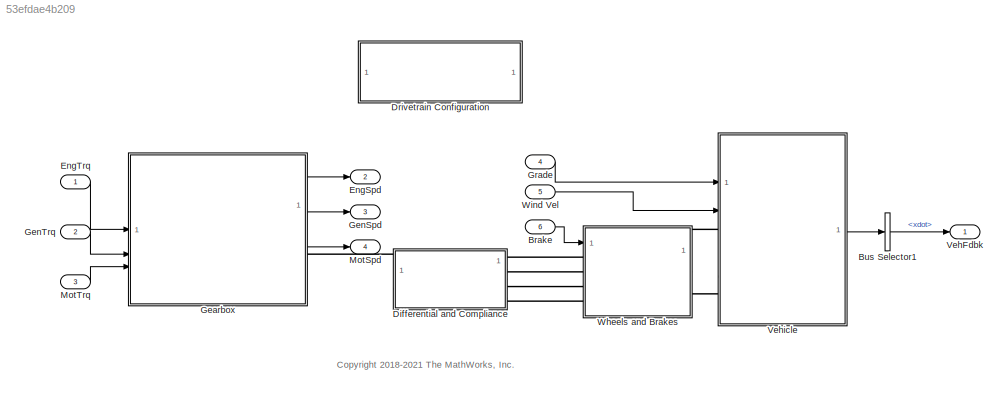
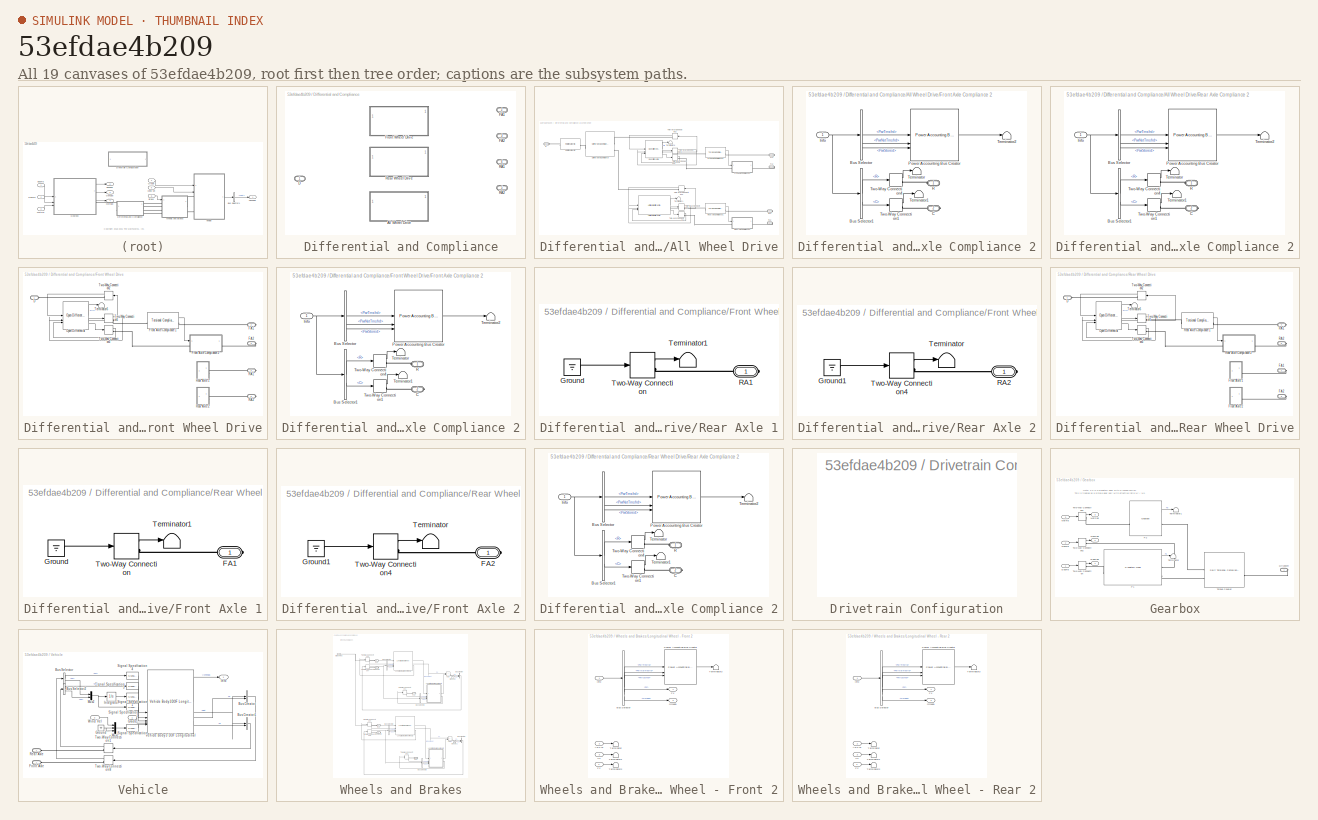
[diagram: thumbnail index - all 19 canvases of the model, root first then tree order]
MODEL slx_53efdae4b209
KIND model
CONFIG AbsTol = auto
CONFIG EnableMultiTasking = on
CONFIG MaxStep = auto
CONFIG MinStep = auto
CONFIG RelTol = 1e-3
CONFIG SampleTimeConstraint = Unconstrained
CONFIG SolverName = VariableStepAuto
CONFIG StartTime = 0.0
CONFIG StopTime = inf
WORKSPACE source: mxarray member
WORKSPACE DiffRatio: Simulink.Parameter (value not decoded)
WORKSPACE Jc1: Simulink.Parameter (value not decoded)
WORKSPACE Jp1: Simulink.Parameter (value not decoded)
WORKSPACE Jr1: Simulink.Parameter (value not decoded)
WORKSPACE Js1: Simulink.Parameter (value not decoded)
WORKSPACE NF: Simulink.Parameter (value not decoded)
WORKSPACE NR: Simulink.Parameter (value not decoded)
WORKSPACE Np1: Simulink.Parameter (value not decoded)
WORKSPACE Np2: Simulink.Parameter (value not decoded)
WORKSPACE Nr1: Simulink.Parameter (value not decoded)
WORKSPACE Nr2: Simulink.Parameter (value not decoded)
WORKSPACE Ns1: Simulink.Parameter (value not decoded)
WORKSPACE Ns2: Simulink.Parameter (value not decoded)
WORKSPACE RWheel: Simulink.Parameter (value not decoded)
WORKSPACE b_axle: Simulink.Parameter (value not decoded)
WORKSPACE b_driveshaft: Simulink.Parameter (value not decoded)
WORKSPACE bc1: Simulink.Parameter (value not decoded)
WORKSPACE bp1: Simulink.Parameter (value not decoded)
WORKSPACE br1: Simulink.Parameter (value not decoded)
WORKSPACE bs1: Simulink.Parameter (value not decoded)
WORKSPACE k_axle: Simulink.Parameter (value not decoded)
WORKSPACE k_driveshaft: Simulink.Parameter (value not decoded)
WORKSPACE wc_shaft: Simulink.Parameter (value not decoded)
BLOCK [Inport] Brake
  Port = 6
BLOCK [BusSelector] Bus Selector1
  OutputSignals = BdyFrm.Cg.Vel.xdot
BLOCK [SubSystem] Differential and Compliance
  LabelModeActiveChoice = 0
  Variant = on
  VariantControlMode = label
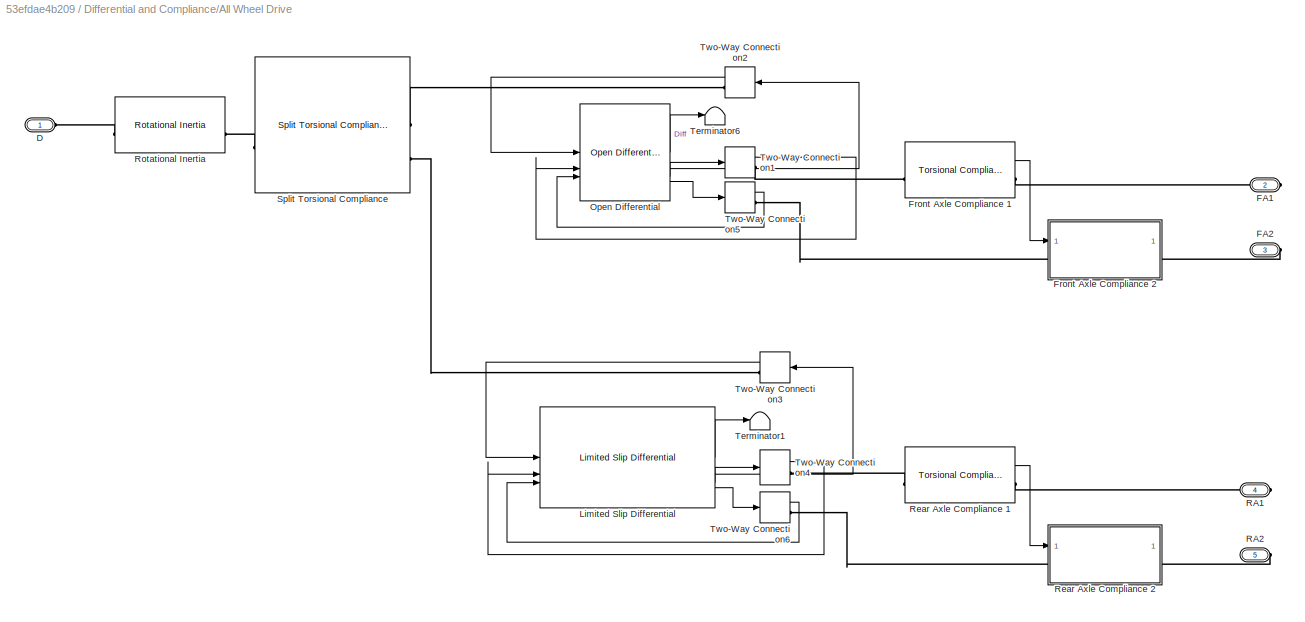
BLOCK [SubSystem] Differential and Compliance/All Wheel Drive
  VariantControl = 2
BLOCK [PMIOPort] Differential and Compliance/All Wheel Drive/D
  Side = Left
BLOCK [PMIOPort] Differential and Compliance/All Wheel Drive/FA1
  Port = 2
  Side = Right
BLOCK [PMIOPort] Differential and Compliance/All Wheel Drive/FA2
  Port = 3
  Side = Right
BLOCK [Reference] Differential and Compliance/All Wheel Drive/Front Axle Compliance 1  REF=autolibsharedcoupling/Torsional Compliance
  LibrarySourceBlock = autolibcoupling/Torsional Compliance
  SourceBlock = autolibsharedcoupling/Torsional Compliance
  SourceType = Torsional Compliance
BLOCK [SubSystem] Differential and Compliance/All Wheel Drive/Front Axle Compliance 2
BLOCK [BusSelector] Differential and Compliance/All Wheel Drive/Front Axle Compliance 2/Bus Selector
  OutputSignals = PwrInfo.PwrTrnsfrd,PwrInfo.PwrNotTrnsfrd,PwrInfo.PwrStored
BLOCK [BusSelector] Differential and Compliance/All Wheel Drive/Front Axle Compliance 2/Bus Selector1
  OutputSignals = Trq.R,Trq.C
BLOCK [PMIOPort] Differential and Compliance/All Wheel Drive/Front Axle Compliance 2/C
  Port = 2
  Side = Right
BLOCK [Inport] Differential and Compliance/All Wheel Drive/Front Axle Compliance 2/Info
BLOCK [Reference] Differential and Compliance/All Wheel Drive/Front Axle Compliance 2/Power Accounting Bus Creator  REF=autolibpowerinfoutils/Power Accounting Bus Creator
  SourceBlock = autolibpowerinfoutils/Power Accounting Bus Creator
  SourceType = Power Accounting Bus Creator
BLOCK [PMIOPort] Differential and Compliance/All Wheel Drive/Front Axle Compliance 2/R
  Side = Left
BLOCK [Terminator] Differential and Compliance/All Wheel Drive/Front Axle Compliance 2/Terminator
BLOCK [Terminator] Differential and Compliance/All Wheel Drive/Front Axle Compliance 2/Terminator1
BLOCK [Terminator] Differential and Compliance/All Wheel Drive/Front Axle Compliance 2/Terminator2
BLOCK [TwoWayConnection] Differential and Compliance/All Wheel Drive/Front Axle Compliance 2/Two-Way Connection1
BLOCK [TwoWayConnection] Differential and Compliance/All Wheel Drive/Front Axle Compliance 2/Two-Way Connection4
BLOCK [Reference] Differential and Compliance/All Wheel Drive/Limited Slip Differential  REF=autolibshareddiff/Limited Slip Differential
  LibrarySourceBlock = autolibdiff/Limited Slip Differential
  SourceBlock = autolibshareddiff/Limited Slip Differential
  SourceType = Limited Slip Differential
BLOCK [Reference] Differential and Compliance/All Wheel Drive/Open Differential  REF=autolibshareddiff/Open Differential
  LibrarySourceBlock = autolibdiff/Open Differential
  SourceBlock = autolibshareddiff/Open Differential
  SourceType = Open Differential
BLOCK [PMIOPort] Differential and Compliance/All Wheel Drive/RA1
  Port = 4
  Side = Right
BLOCK [PMIOPort] Differential and Compliance/All Wheel Drive/RA2
  Port = 5
  Side = Right
BLOCK [Reference] Differential and Compliance/All Wheel Drive/Rear Axle Compliance 1  REF=autolibsharedcoupling/Torsional Compliance
  LibrarySourceBlock = autolibcoupling/Torsional Compliance
  SourceBlock = autolibsharedcoupling/Torsional Compliance
  SourceType = Torsional Compliance
BLOCK [SubSystem] Differential and Compliance/All Wheel Drive/Rear Axle Compliance 2
BLOCK [BusSelector] Differential and Compliance/All Wheel Drive/Rear Axle Compliance 2/Bus Selector
  OutputSignals = PwrInfo.PwrTrnsfrd,PwrInfo.PwrNotTrnsfrd,PwrInfo.PwrStored
BLOCK [BusSelector] Differential and Compliance/All Wheel Drive/Rear Axle Compliance 2/Bus Selector1
  OutputSignals = Trq.R,Trq.C
BLOCK [PMIOPort] Differential and Compliance/All Wheel Drive/Rear Axle Compliance 2/C
  Port = 2
  Side = Right
BLOCK [Inport] Differential and Compliance/All Wheel Drive/Rear Axle Compliance 2/Info
BLOCK [Reference] Differential and Compliance/All Wheel Drive/Rear Axle Compliance 2/Power Accounting Bus Creator  REF=autolibpowerinfoutils/Power Accounting Bus Creator
  SourceBlock = autolibpowerinfoutils/Power Accounting Bus Creator
  SourceType = Power Accounting Bus Creator
BLOCK [PMIOPort] Differential and Compliance/All Wheel Drive/Rear Axle Compliance 2/R
  Side = Left
BLOCK [Terminator] Differential and Compliance/All Wheel Drive/Rear Axle Compliance 2/Terminator
BLOCK [Terminator] Differential and Compliance/All Wheel Drive/Rear Axle Compliance 2/Terminator1
BLOCK [Terminator] Differential and Compliance/All Wheel Drive/Rear Axle Compliance 2/Terminator2
BLOCK [TwoWayConnection] Differential and Compliance/All Wheel Drive/Rear Axle Compliance 2/Two-Way Connection1
BLOCK [TwoWayConnection] Differential and Compliance/All Wheel Drive/Rear Axle Compliance 2/Two-Way Connection4
BLOCK [Reference] Differential and Compliance/All Wheel Drive/Rotational Inertia  REF=autolibsharedcoupling/Rotational Inertia
  LibrarySourceBlock = autolibcoupling/Rotational Inertia
  SourceBlock = autolibsharedcoupling/Rotational Inertia
  SourceType = Rotational Inertia
BLOCK [Reference] Differential and Compliance/All Wheel Drive/Split Torsional Compliance  REF=autolibsharedcoupling/Split Torsional Compliance
  LibrarySourceBlock = autolibcoupling/Split Torsional Compliance
  SourceBlock = autolibsharedcoupling/Split Torsional Compliance
  SourceType = Split Torsional Compliance
BLOCK [Terminator] Differential and Compliance/All Wheel Drive/Terminator1
BLOCK [Terminator] Differential and Compliance/All Wheel Drive/Terminator6
BLOCK [TwoWayConnection] Differential and Compliance/All Wheel Drive/Two-Way Connection1
BLOCK [TwoWayConnection] Differential and Compliance/All Wheel Drive/Two-Way Connection2
BLOCK [TwoWayConnection] Differential and Compliance/All Wheel Drive/Two-Way Connection3
BLOCK [TwoWayConnection] Differential and Compliance/All Wheel Drive/Two-Way Connection4
  NameLocation = top
BLOCK [TwoWayConnection] Differential and Compliance/All Wheel Drive/Two-Way Connection5
BLOCK [TwoWayConnection] Differential and Compliance/All Wheel Drive/Two-Way Connection6
BLOCK [PMIOPort] Differential and Compliance/D
  Side = Left
BLOCK [PMIOPort] Differential and Compliance/FA1
  Port = 2
  Side = Right
BLOCK [PMIOPort] Differential and Compliance/FA2
  Port = 3
  Side = Right
BLOCK [SubSystem] Differential and Compliance/Front Wheel Drive
  VariantControl = 0
BLOCK [PMIOPort] Differential and Compliance/Front Wheel Drive/D
  Side = Left
BLOCK [PMIOPort] Differential and Compliance/Front Wheel Drive/FA1
  Port = 2
  Side = Right
BLOCK [PMIOPort] Differential and Compliance/Front Wheel Drive/FA2
  Port = 3
  Side = Right
BLOCK [Reference] Differential and Compliance/Front Wheel Drive/Front Axle Compliance 1  REF=autolibsharedcoupling/Torsional Compliance
  LibrarySourceBlock = autolibcoupling/Torsional Compliance
  SourceBlock = autolibsharedcoupling/Torsional Compliance
  SourceType = Torsional Compliance
BLOCK [SubSystem] Differential and Compliance/Front Wheel Drive/Front Axle Compliance 2
BLOCK [BusSelector] Differential and Compliance/Front Wheel Drive/Front Axle Compliance 2/Bus Selector
  OutputSignals = PwrInfo.PwrTrnsfrd,PwrInfo.PwrNotTrnsfrd,PwrInfo.PwrStored
BLOCK [BusSelector] Differential and Compliance/Front Wheel Drive/Front Axle Compliance 2/Bus Selector1
  OutputSignals = Trq.R,Trq.C
BLOCK [PMIOPort] Differential and Compliance/Front Wheel Drive/Front Axle Compliance 2/C
  Port = 2
  Side = Right
BLOCK [Inport] Differential and Compliance/Front Wheel Drive/Front Axle Compliance 2/Info
BLOCK [Reference] Differential and Compliance/Front Wheel Drive/Front Axle Compliance 2/Power Accounting Bus Creator  REF=autolibpowerinfoutils/Power Accounting Bus Creator
  SourceBlock = autolibpowerinfoutils/Power Accounting Bus Creator
  SourceType = Power Accounting Bus Creator
BLOCK [PMIOPort] Differential and Compliance/Front Wheel Drive/Front Axle Compliance 2/R
  Side = Left
BLOCK [Terminator] Differential and Compliance/Front Wheel Drive/Front Axle Compliance 2/Terminator
BLOCK [Terminator] Differential and Compliance/Front Wheel Drive/Front Axle Compliance 2/Terminator1
BLOCK [Terminator] Differential and Compliance/Front Wheel Drive/Front Axle Compliance 2/Terminator2
BLOCK [TwoWayConnection] Differential and Compliance/Front Wheel Drive/Front Axle Compliance 2/Two-Way Connection1
BLOCK [TwoWayConnection] Differential and Compliance/Front Wheel Drive/Front Axle Compliance 2/Two-Way Connection4
BLOCK [Reference] Differential and Compliance/Front Wheel Drive/Open Differential  REF=autolibshareddiff/Open Differential
  LibrarySourceBlock = autolibdiff/Open Differential
  SourceBlock = autolibshareddiff/Open Differential
  SourceType = Open Differential
BLOCK [PMIOPort] Differential and Compliance/Front Wheel Drive/RA1
  Port = 4
  Side = Right
BLOCK [PMIOPort] Differential and Compliance/Front Wheel Drive/RA2
  Port = 5
  Side = Right
BLOCK [SubSystem] Differential and Compliance/Front Wheel Drive/Rear Axle 1
BLOCK [Ground] Differential and Compliance/Front Wheel Drive/Rear Axle 1/Ground
BLOCK [PMIOPort] Differential and Compliance/Front Wheel Drive/Rear Axle 1/RA1
  Side = Right
BLOCK [Terminator] Differential and Compliance/Front Wheel Drive/Rear Axle 1/Terminator1
BLOCK [TwoWayConnection] Differential and Compliance/Front Wheel Drive/Rear Axle 1/Two-Way Connection
BLOCK [SubSystem] Differential and Compliance/Front Wheel Drive/Rear Axle 2
BLOCK [Ground] Differential and Compliance/Front Wheel Drive/Rear Axle 2/Ground1
BLOCK [PMIOPort] Differential and Compliance/Front Wheel Drive/Rear Axle 2/RA2
  Side = Right
BLOCK [Terminator] Differential and Compliance/Front Wheel Drive/Rear Axle 2/Terminator
BLOCK [TwoWayConnection] Differential and Compliance/Front Wheel Drive/Rear Axle 2/Two-Way Connection4
BLOCK [Terminator] Differential and Compliance/Front Wheel Drive/Terminator6
BLOCK [TwoWayConnection] Differential and Compliance/Front Wheel Drive/Two-Way Connection1
BLOCK [TwoWayConnection] Differential and Compliance/Front Wheel Drive/Two-Way Connection2
BLOCK [TwoWayConnection] Differential and Compliance/Front Wheel Drive/Two-Way Connection3
BLOCK [PMIOPort] Differential and Compliance/RA1
  Port = 4
  Side = Right
BLOCK [PMIOPort] Differential and Compliance/RA2
  Port = 5
  Side = Right
BLOCK [SubSystem] Differential and Compliance/Rear Wheel Drive
  VariantControl = 1
BLOCK [PMIOPort] Differential and Compliance/Rear Wheel Drive/D
  Side = Left
BLOCK [PMIOPort] Differential and Compliance/Rear Wheel Drive/FA1
  Port = 2
  Side = Right
BLOCK [PMIOPort] Differential and Compliance/Rear Wheel Drive/FA2
  Port = 3
  Side = Right
BLOCK [SubSystem] Differential and Compliance/Rear Wheel Drive/Front Axle 1
BLOCK [PMIOPort] Differential and Compliance/Rear Wheel Drive/Front Axle 1/FA1
  Side = Right
BLOCK [Ground] Differential and Compliance/Rear Wheel Drive/Front Axle 1/Ground
BLOCK [Terminator] Differential and Compliance/Rear Wheel Drive/Front Axle 1/Terminator1
BLOCK [TwoWayConnection] Differential and Compliance/Rear Wheel Drive/Front Axle 1/Two-Way Connection
BLOCK [SubSystem] Differential and Compliance/Rear Wheel Drive/Front Axle 2
BLOCK [PMIOPort] Differential and Compliance/Rear Wheel Drive/Front Axle 2/FA2
  Side = Right
BLOCK [Ground] Differential and Compliance/Rear Wheel Drive/Front Axle 2/Ground1
BLOCK [Terminator] Differential and Compliance/Rear Wheel Drive/Front Axle 2/Terminator
BLOCK [TwoWayConnection] Differential and Compliance/Rear Wheel Drive/Front Axle 2/Two-Way Connection4
BLOCK [Reference] Differential and Compliance/Rear Wheel Drive/Open Differential  REF=autolibshareddiff/Open Differential
  LibrarySourceBlock = autolibdiff/Open Differential
  SourceBlock = autolibshareddiff/Open Differential
  SourceType = Open Differential
BLOCK [PMIOPort] Differential and Compliance/Rear Wheel Drive/RA1
  Port = 4
  Side = Right
BLOCK [PMIOPort] Differential and Compliance/Rear Wheel Drive/RA2
  Port = 5
  Side = Right
BLOCK [Reference] Differential and Compliance/Rear Wheel Drive/Rear Axle Compliance 1  REF=autolibsharedcoupling/Torsional Compliance
  LibrarySourceBlock = autolibcoupling/Torsional Compliance
  SourceBlock = autolibsharedcoupling/Torsional Compliance
  SourceType = Torsional Compliance
BLOCK [SubSystem] Differential and Compliance/Rear Wheel Drive/Rear Axle Compliance 2
BLOCK [BusSelector] Differential and Compliance/Rear Wheel Drive/Rear Axle Compliance 2/Bus Selector
  OutputSignals = PwrInfo.PwrTrnsfrd,PwrInfo.PwrNotTrnsfrd,PwrInfo.PwrStored
BLOCK [BusSelector] Differential and Compliance/Rear Wheel Drive/Rear Axle Compliance 2/Bus Selector1
  OutputSignals = Trq.R,Trq.C
BLOCK [PMIOPort] Differential and Compliance/Rear Wheel Drive/Rear Axle Compliance 2/C
  Port = 2
  Side = Right
BLOCK [Inport] Differential and Compliance/Rear Wheel Drive/Rear Axle Compliance 2/Info
BLOCK [Reference] Differential and Compliance/Rear Wheel Drive/Rear Axle Compliance 2/Power Accounting Bus Creator  REF=autolibpowerinfoutils/Power Accounting Bus Creator
  SourceBlock = autolibpowerinfoutils/Power Accounting Bus Creator
  SourceType = Power Accounting Bus Creator
BLOCK [PMIOPort] Differential and Compliance/Rear Wheel Drive/Rear Axle Compliance 2/R
  Side = Left
BLOCK [Terminator] Differential and Compliance/Rear Wheel Drive/Rear Axle Compliance 2/Terminator
BLOCK [Terminator] Differential and Compliance/Rear Wheel Drive/Rear Axle Compliance 2/Terminator1
BLOCK [Terminator] Differential and Compliance/Rear Wheel Drive/Rear Axle Compliance 2/Terminator2
BLOCK [TwoWayConnection] Differential and Compliance/Rear Wheel Drive/Rear Axle Compliance 2/Two-Way Connection1
BLOCK [TwoWayConnection] Differential and Compliance/Rear Wheel Drive/Rear Axle Compliance 2/Two-Way Connection4
BLOCK [Terminator] Differential and Compliance/Rear Wheel Drive/Terminator6
BLOCK [TwoWayConnection] Differential and Compliance/Rear Wheel Drive/Two-Way Connection1
BLOCK [TwoWayConnection] Differential and Compliance/Rear Wheel Drive/Two-Way Connection2
BLOCK [TwoWayConnection] Differential and Compliance/Rear Wheel Drive/Two-Way Connection3
BLOCK [SubSystem] Drivetrain Configuration
  AttributesFormatString = Active Mode: %<drivetrainMode>
BLOCK [Outport] EngSpd
  BusOutputAsStruct = on
  Port = 2
  SignalType = real
  VarSizeSig = No
  VectorParamsAs1DForOutWhenUnconnected = off
BLOCK [Inport] EngTrq
BLOCK [SubSystem] Gearbox
BLOCK [PMIOPort] Gearbox/Driveshft
  Side = Right
BLOCK [Outport] Gearbox/EngSpd
  NameLocation = top
  VectorParamsAs1DForOutWhenUnconnected = off
BLOCK [Inport] Gearbox/EngTrq
BLOCK [Outport] Gearbox/GenSpd
  NameLocation = top
  Port = 2
  VectorParamsAs1DForOutWhenUnconnected = off
BLOCK [Inport] Gearbox/GenTrq
  Port = 2
BLOCK [Outport] Gearbox/MotSpd
  NameLocation = top
  Port = 3
  VectorParamsAs1DForOutWhenUnconnected = off
BLOCK [Inport] Gearbox/MotTrq
  Port = 3
BLOCK [Reference] Gearbox/P1  REF=autolibcoupling/Planetary Gear
  SourceBlock = autolibcoupling/Planetary Gear
  SourceType = Planetary Gear: Torque Input - Reduced Order
BLOCK [Reference] Gearbox/P2  REF=autolibcoupling/Gearbox
  SourceBlock = autolibcoupling/Gearbox
  SourceType = Gearbox
BLOCK [Terminator] Gearbox/Terminator
BLOCK [Terminator] Gearbox/Terminator1
BLOCK [Reference] Gearbox/Torque Coupler  REF=autolibsharedcoupling/Split Torsional Compliance
  LibrarySourceBlock = autolibcoupling/Split Torsional Compliance
  SourceBlock = autolibsharedcoupling/Split Torsional Compliance
  SourceType = Split Torsional Compliance
BLOCK [TwoWayConnection] Gearbox/Two-Way Connection
BLOCK [TwoWayConnection] Gearbox/Two-Way Connection1
BLOCK [TwoWayConnection] Gearbox/Two-Way Connection2
BLOCK [Outport] GenSpd
  BusOutputAsStruct = on
  Port = 3
  SignalType = real
  VarSizeSig = No
  VectorParamsAs1DForOutWhenUnconnected = off
BLOCK [Inport] GenTrq
  Port = 2
BLOCK [Inport] Grade
  Port = 4
BLOCK [Outport] MotSpd
  BusOutputAsStruct = on
  Port = 4
  SignalType = real
  VarSizeSig = No
  VectorParamsAs1DForOutWhenUnconnected = off
BLOCK [Inport] MotTrq
  Port = 3
BLOCK [Outport] VehFdbk
  VectorParamsAs1DForOutWhenUnconnected = off
BLOCK [SubSystem] Vehicle
BLOCK [BusCreator] Vehicle/Bus Creator
  DisplayOption = bar
  InheritFromInputs = on
  Inputs = 2
BLOCK [BusCreator] Vehicle/Bus Creator1
  DisplayOption = bar
  InheritFromInputs = on
  Inputs = 2
BLOCK [BusSelector] Vehicle/Bus Selector
  OutputSignals = Fx,Fz
BLOCK [BusSelector] Vehicle/Bus Selector2
  OutputSignals = Fx,Fz
BLOCK [PMIOPort] Vehicle/Front Axle
  Side = Left
BLOCK [Inport] Vehicle/Grade
  Unit = deg
BLOCK [Ground] Vehicle/Ground
BLOCK [Outport] Vehicle/Info
  VectorParamsAs1DForOutWhenUnconnected = off
BLOCK [Integrator] Vehicle/Integrator
BLOCK [Mux] Vehicle/Mux1
  DisplayOption = bar
  Inputs = 3
BLOCK [Mux] Vehicle/Mux2
  DisplayOption = bar
  Inputs = 2
BLOCK [PMIOPort] Vehicle/Rear Axle
  Port = 2
  Side = Left
BLOCK [SignalSpecification] Vehicle/Signal Specification
  Unit = m/s
BLOCK [SignalSpecification] Vehicle/Signal Specification1
  Unit = m
BLOCK [SignalSpecification] Vehicle/Signal Specification2
  Unit = m/s
BLOCK [SignalSpecification] Vehicle/Signal Specification3
  Unit = N
BLOCK [SignalSpecification] Vehicle/Signal Specification4
  Unit = N
BLOCK [TwoWayConnection] Vehicle/Two-Way Connection1
BLOCK [TwoWayConnection] Vehicle/Two-Way Connection8
BLOCK [Reference] Vehicle/Vehicle Body 3 DOF Longitudinal  REF=autolibshared/Vehicle Body 3DOF Longitudinal
  LibrarySourceBlock = autolibvehdynlong/Vehicle Body 3DOF Longitudinal
  SourceBlock = autolibshared/Vehicle Body 3DOF Longitudinal
  SourceType = Vehicle Body 3DOF Longitudinal
BLOCK [Inport] Vehicle/Wind Vel
  Port = 2
  Unit = m/s
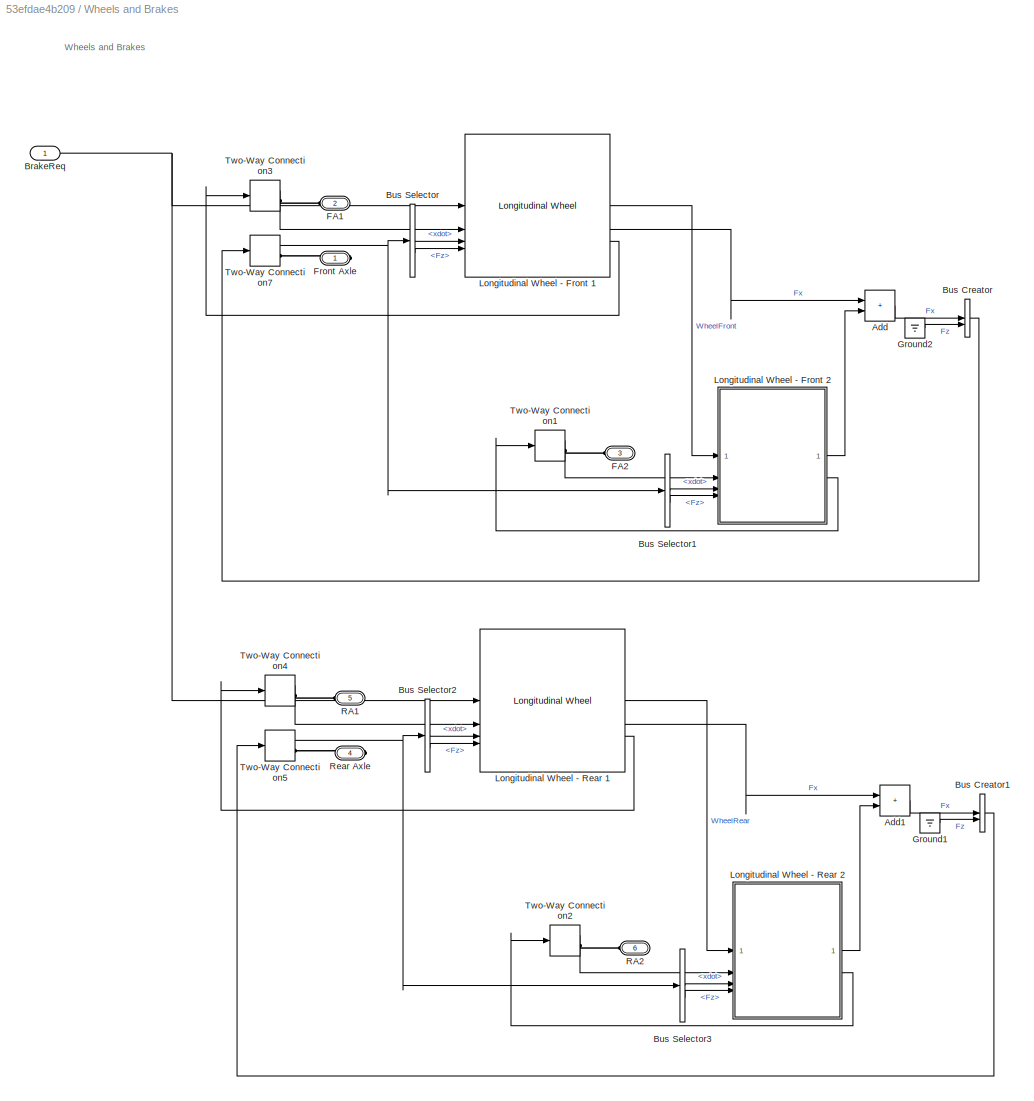
BLOCK [SubSystem] Wheels and Brakes
  VariantControl = 0
BLOCK [Sum] Wheels and Brakes/Add
  IconShape = rectangular
BLOCK [Sum] Wheels and Brakes/Add1
  IconShape = rectangular
BLOCK [Inport] Wheels and Brakes/BrakeReq
BLOCK [BusCreator] Wheels and Brakes/Bus Creator
  DisplayOption = bar
  InheritFromInputs = on
  Inputs = 2
BLOCK [BusCreator] Wheels and Brakes/Bus Creator1
  DisplayOption = bar
  InheritFromInputs = on
  Inputs = 2
BLOCK [BusSelector] Wheels and Brakes/Bus Selector
  OutputSignals = xdot,Fz
BLOCK [BusSelector] Wheels and Brakes/Bus Selector1
  OutputSignals = xdot,Fz
BLOCK [BusSelector] Wheels and Brakes/Bus Selector2
  OutputSignals = xdot,Fz
BLOCK [BusSelector] Wheels and Brakes/Bus Selector3
  OutputSignals = xdot,Fz
BLOCK [PMIOPort] Wheels and Brakes/FA1
  Port = 2
  Side = Left
BLOCK [PMIOPort] Wheels and Brakes/FA2
  Port = 3
  Side = Left
BLOCK [PMIOPort] Wheels and Brakes/Front Axle
  Side = Right
BLOCK [Ground] Wheels and Brakes/Ground1
BLOCK [Ground] Wheels and Brakes/Ground2
BLOCK [Reference] Wheels and Brakes/Longitudinal Wheel - Front 1  REF=autolibshared/Longitudinal Wheel
  AttributesFormatString = Brake Type: %<BrakeType>
  LibrarySourceBlock = autolibwheelslong/Longitudinal Wheel
  SourceBlock = autolibshared/Longitudinal Wheel
  SourceType = Longitudinal Wheel
BLOCK [SubSystem] Wheels and Brakes/Longitudinal Wheel - Front 2
BLOCK [Inport] Wheels and Brakes/Longitudinal Wheel - Front 2/AxlTrq
  Port = 2
BLOCK [BusSelector] Wheels and Brakes/Longitudinal Wheel - Front 2/Bus Selector
  OutputSignals = PwrInfo.PwrTrnsfrd,PwrInfo.PwrNotTrnsfrd,PwrInfo.PwrStored,Fx,Omega
BLOCK [Outport] Wheels and Brakes/Longitudinal Wheel - Front 2/Fx
  VectorParamsAs1DForOutWhenUnconnected = off
BLOCK [Inport] Wheels and Brakes/Longitudinal Wheel - Front 2/Fz
  Port = 4
BLOCK [Inport] Wheels and Brakes/Longitudinal Wheel - Front 2/Info
BLOCK [Outport] Wheels and Brakes/Longitudinal Wheel - Front 2/Omega
  Port = 2
  VectorParamsAs1DForOutWhenUnconnected = off
BLOCK [Reference] Wheels and Brakes/Longitudinal Wheel - Front 2/Power Accounting Bus Creator  REF=autolibpowerinfoutils/Power Accounting Bus Creator
  SourceBlock = autolibpowerinfoutils/Power Accounting Bus Creator
  SourceType = Power Accounting Bus Creator
BLOCK [Terminator] Wheels and Brakes/Longitudinal Wheel - Front 2/Terminator
BLOCK [Terminator] Wheels and Brakes/Longitudinal Wheel - Front 2/Terminator1
BLOCK [Terminator] Wheels and Brakes/Longitudinal Wheel - Front 2/Terminator2
BLOCK [Terminator] Wheels and Brakes/Longitudinal Wheel - Front 2/Terminator3
BLOCK [Inport] Wheels and Brakes/Longitudinal Wheel - Front 2/Vx
  Port = 3
BLOCK [Reference] Wheels and Brakes/Longitudinal Wheel - Rear 1  REF=autolibshared/Longitudinal Wheel
  AttributesFormatString = Brake Type: %<BrakeType>
  LibrarySourceBlock = autolibwheelslong/Longitudinal Wheel
  SourceBlock = autolibshared/Longitudinal Wheel
  SourceType = Longitudinal Wheel
BLOCK [SubSystem] Wheels and Brakes/Longitudinal Wheel - Rear 2
BLOCK [Inport] Wheels and Brakes/Longitudinal Wheel - Rear 2/AxlTrq
  Port = 2
BLOCK [BusSelector] Wheels and Brakes/Longitudinal Wheel - Rear 2/Bus Selector
  OutputSignals = PwrInfo.PwrTrnsfrd,PwrInfo.PwrNotTrnsfrd,PwrInfo.PwrStored,Fx,Omega
BLOCK [Outport] Wheels and Brakes/Longitudinal Wheel - Rear 2/Fx
  VectorParamsAs1DForOutWhenUnconnected = off
BLOCK [Inport] Wheels and Brakes/Longitudinal Wheel - Rear 2/Fz
  Port = 4
BLOCK [Inport] Wheels and Brakes/Longitudinal Wheel - Rear 2/Info
BLOCK [Outport] Wheels and Brakes/Longitudinal Wheel - Rear 2/Omega
  Port = 2
  VectorParamsAs1DForOutWhenUnconnected = off
BLOCK [Reference] Wheels and Brakes/Longitudinal Wheel - Rear 2/Power Accounting Bus Creator  REF=autolibpowerinfoutils/Power Accounting Bus Creator
  SourceBlock = autolibpowerinfoutils/Power Accounting Bus Creator
  SourceType = Power Accounting Bus Creator
BLOCK [Terminator] Wheels and Brakes/Longitudinal Wheel - Rear 2/Terminator
BLOCK [Terminator] Wheels and Brakes/Longitudinal Wheel - Rear 2/Terminator1
BLOCK [Terminator] Wheels and Brakes/Longitudinal Wheel - Rear 2/Terminator2
BLOCK [Terminator] Wheels and Brakes/Longitudinal Wheel - Rear 2/Terminator3
BLOCK [Inport] Wheels and Brakes/Longitudinal Wheel - Rear 2/Vx
  Port = 3
BLOCK [PMIOPort] Wheels and Brakes/RA1
  Port = 5
  Side = Left
BLOCK [PMIOPort] Wheels and Brakes/RA2
  Port = 6
  Side = Left
BLOCK [PMIOPort] Wheels and Brakes/Rear Axle
  Port = 4
  Side = Right
BLOCK [TwoWayConnection] Wheels and Brakes/Two-Way Connection1
BLOCK [TwoWayConnection] Wheels and Brakes/Two-Way Connection2
BLOCK [TwoWayConnection] Wheels and Brakes/Two-Way Connection3
BLOCK [TwoWayConnection] Wheels and Brakes/Two-Way Connection4
BLOCK [TwoWayConnection] Wheels and Brakes/Two-Way Connection5
BLOCK [TwoWayConnection] Wheels and Brakes/Two-Way Connection7
BLOCK [Inport] Wind Vel
  Port = 5
ANNOTATION (root): <copyright redacted>
ANNOTATION Gearbox: Note: P2 is a planetary gear with a locked carrier. This is treated as a simple gear pair with effective ratio Nr / Ns.
ANNOTATION Wheels and Brakes: Wheels and Brakes
LINE Brake:1 -> Wheels and Brakes:1
LINE Bus Selector1:1 -> VehFdbk:1
LINE Differential and Compliance/All Wheel Drive/Front Axle Compliance 1:1 -> Differential and Compliance/All Wheel Drive/Front Axle Compliance 2:1
LINE Differential and Compliance/All Wheel Drive/Front Axle Compliance 2/Bus Selector1:1 -> Differential and Compliance/All Wheel Drive/Front Axle Compliance 2/Two-Way Connection4:1
LINE Differential and Compliance/All Wheel Drive/Front Axle Compliance 2/Bus Selector1:2 -> Differential and Compliance/All Wheel Drive/Front Axle Compliance 2/Two-Way Connection1:1
LINE Differential and Compliance/All Wheel Drive/Front Axle Compliance 2/Bus Selector:1 -> Differential and Compliance/All Wheel Drive/Front Axle Compliance 2/Power Accounting Bus Creator:1
LINE Differential and Compliance/All Wheel Drive/Front Axle Compliance 2/Bus Selector:2 -> Differential and Compliance/All Wheel Drive/Front Axle Compliance 2/Power Accounting Bus Creator:2
LINE Differential and Compliance/All Wheel Drive/Front Axle Compliance 2/Bus Selector:3 -> Differential and Compliance/All Wheel Drive/Front Axle Compliance 2/Power Accounting Bus Creator:3
NET Differential and Compliance/All Wheel Drive/Front Axle Compliance 2/Info:1 -> Differential and Compliance/All Wheel Drive/Front Axle Compliance 2/Bus Selector1:1, Differential and Compliance/All Wheel Drive/Front Axle Compliance 2/Bus Selector:1
LINE Differential and Compliance/All Wheel Drive/Front Axle Compliance 2/Power Accounting Bus Creator:1 -> Differential and Compliance/All Wheel Drive/Front Axle Compliance 2/Terminator2:1
LINE Differential and Compliance/All Wheel Drive/Front Axle Compliance 2/Two-Way Connection1:1 -> Differential and Compliance/All Wheel Drive/Front Axle Compliance 2/Terminator1:1
LINE Differential and Compliance/All Wheel Drive/Front Axle Compliance 2/Two-Way Connection4:1 -> Differential and Compliance/All Wheel Drive/Front Axle Compliance 2/Terminator:1
LINE Differential and Compliance/All Wheel Drive/Limited Slip Differential:1 -> Differential and Compliance/All Wheel Drive/Terminator1:1
LINE Differential and Compliance/All Wheel Drive/Limited Slip Differential:2 -> Differential and Compliance/All Wheel Drive/Two-Way Connection3:1
LINE Differential and Compliance/All Wheel Drive/Limited Slip Differential:3 -> Differential and Compliance/All Wheel Drive/Two-Way Connection4:1
LINE Differential and Compliance/All Wheel Drive/Limited Slip Differential:4 -> Differential and Compliance/All Wheel Drive/Two-Way Connection6:1
LINE Differential and Compliance/All Wheel Drive/Open Differential:1 -> Differential and Compliance/All Wheel Drive/Terminator6:1
LINE Differential and Compliance/All Wheel Drive/Open Differential:2 -> Differential and Compliance/All Wheel Drive/Two-Way Connection2:1
LINE Differential and Compliance/All Wheel Drive/Open Differential:3 -> Differential and Compliance/All Wheel Drive/Two-Way Connection1:1
LINE Differential and Compliance/All Wheel Drive/Open Differential:4 -> Differential and Compliance/All Wheel Drive/Two-Way Connection5:1
LINE Differential and Compliance/All Wheel Drive/Rear Axle Compliance 1:1 -> Differential and Compliance/All Wheel Drive/Rear Axle Compliance 2:1
LINE Differential and Compliance/All Wheel Drive/Rear Axle Compliance 2/Bus Selector1:1 -> Differential and Compliance/All Wheel Drive/Rear Axle Compliance 2/Two-Way Connection4:1
LINE Differential and Compliance/All Wheel Drive/Rear Axle Compliance 2/Bus Selector1:2 -> Differential and Compliance/All Wheel Drive/Rear Axle Compliance 2/Two-Way Connection1:1
LINE Differential and Compliance/All Wheel Drive/Rear Axle Compliance 2/Bus Selector:1 -> Differential and Compliance/All Wheel Drive/Rear Axle Compliance 2/Power Accounting Bus Creator:1
LINE Differential and Compliance/All Wheel Drive/Rear Axle Compliance 2/Bus Selector:2 -> Differential and Compliance/All Wheel Drive/Rear Axle Compliance 2/Power Accounting Bus Creator:2
LINE Differential and Compliance/All Wheel Drive/Rear Axle Compliance 2/Bus Selector:3 -> Differential and Compliance/All Wheel Drive/Rear Axle Compliance 2/Power Accounting Bus Creator:3
NET Differential and Compliance/All Wheel Drive/Rear Axle Compliance 2/Info:1 -> Differential and Compliance/All Wheel Drive/Rear Axle Compliance 2/Bus Selector1:1, Differential and Compliance/All Wheel Drive/Rear Axle Compliance 2/Bus Selector:1
LINE Differential and Compliance/All Wheel Drive/Rear Axle Compliance 2/Power Accounting Bus Creator:1 -> Differential and Compliance/All Wheel Drive/Rear Axle Compliance 2/Terminator2:1
LINE Differential and Compliance/All Wheel Drive/Rear Axle Compliance 2/Two-Way Connection1:1 -> Differential and Compliance/All Wheel Drive/Rear Axle Compliance 2/Terminator1:1
LINE Differential and Compliance/All Wheel Drive/Rear Axle Compliance 2/Two-Way Connection4:1 -> Differential and Compliance/All Wheel Drive/Rear Axle Compliance 2/Terminator:1
LINE Differential and Compliance/All Wheel Drive/Two-Way Connection1:1 -> Differential and Compliance/All Wheel Drive/Open Differential:2
LINE Differential and Compliance/All Wheel Drive/Two-Way Connection2:1 -> Differential and Compliance/All Wheel Drive/Open Differential:1
LINE Differential and Compliance/All Wheel Drive/Two-Way Connection3:1 -> Differential and Compliance/All Wheel Drive/Limited Slip Differential:1
LINE Differential and Compliance/All Wheel Drive/Two-Way Connection4:1 -> Differential and Compliance/All Wheel Drive/Limited Slip Differential:2
LINE Differential and Compliance/All Wheel Drive/Two-Way Connection5:1 -> Differential and Compliance/All Wheel Drive/Open Differential:3
LINE Differential and Compliance/All Wheel Drive/Two-Way Connection6:1 -> Differential and Compliance/All Wheel Drive/Limited Slip Differential:3
LINE Differential and Compliance/Front Wheel Drive/Front Axle Compliance 1:1 -> Differential and Compliance/Front Wheel Drive/Front Axle Compliance 2:1
LINE Differential and Compliance/Front Wheel Drive/Front Axle Compliance 2/Bus Selector1:1 -> Differential and Compliance/Front Wheel Drive/Front Axle Compliance 2/Two-Way Connection4:1
LINE Differential and Compliance/Front Wheel Drive/Front Axle Compliance 2/Bus Selector1:2 -> Differential and Compliance/Front Wheel Drive/Front Axle Compliance 2/Two-Way Connection1:1
LINE Differential and Compliance/Front Wheel Drive/Front Axle Compliance 2/Bus Selector:1 -> Differential and Compliance/Front Wheel Drive/Front Axle Compliance 2/Power Accounting Bus Creator:1
LINE Differential and Compliance/Front Wheel Drive/Front Axle Compliance 2/Bus Selector:2 -> Differential and Compliance/Front Wheel Drive/Front Axle Compliance 2/Power Accounting Bus Creator:2
LINE Differential and Compliance/Front Wheel Drive/Front Axle Compliance 2/Bus Selector:3 -> Differential and Compliance/Front Wheel Drive/Front Axle Compliance 2/Power Accounting Bus Creator:3
NET Differential and Compliance/Front Wheel Drive/Front Axle Compliance 2/Info:1 -> Differential and Compliance/Front Wheel Drive/Front Axle Compliance 2/Bus Selector1:1, Differential and Compliance/Front Wheel Drive/Front Axle Compliance 2/Bus Selector:1
LINE Differential and Compliance/Front Wheel Drive/Front Axle Compliance 2/Power Accounting Bus Creator:1 -> Differential and Compliance/Front Wheel Drive/Front Axle Compliance 2/Terminator2:1
LINE Differential and Compliance/Front Wheel Drive/Front Axle Compliance 2/Two-Way Connection1:1 -> Differential and Compliance/Front Wheel Drive/Front Axle Compliance 2/Terminator1:1
LINE Differential and Compliance/Front Wheel Drive/Front Axle Compliance 2/Two-Way Connection4:1 -> Differential and Compliance/Front Wheel Drive/Front Axle Compliance 2/Terminator:1
LINE Differential and Compliance/Front Wheel Drive/Open Differential:1 -> Differential and Compliance/Front Wheel Drive/Terminator6:1
LINE Differential and Compliance/Front Wheel Drive/Open Differential:2 -> Differential and Compliance/Front Wheel Drive/Two-Way Connection2:1
LINE Differential and Compliance/Front Wheel Drive/Open Differential:3 -> Differential and Compliance/Front Wheel Drive/Two-Way Connection1:1
LINE Differential and Compliance/Front Wheel Drive/Open Differential:4 -> Differential and Compliance/Front Wheel Drive/Two-Way Connection3:1
LINE Differential and Compliance/Front Wheel Drive/Rear Axle 1/Ground:1 -> Differential and Compliance/Front Wheel Drive/Rear Axle 1/Two-Way Connection:1
LINE Differential and Compliance/Front Wheel Drive/Rear Axle 1/Two-Way Connection:1 -> Differential and Compliance/Front Wheel Drive/Rear Axle 1/Terminator1:1
LINE Differential and Compliance/Front Wheel Drive/Rear Axle 2/Ground1:1 -> Differential and Compliance/Front Wheel Drive/Rear Axle 2/Two-Way Connection4:1
LINE Differential and Compliance/Front Wheel Drive/Rear Axle 2/Two-Way Connection4:1 -> Differential and Compliance/Front Wheel Drive/Rear Axle 2/Terminator:1
LINE Differential and Compliance/Front Wheel Drive/Two-Way Connection1:1 -> Differential and Compliance/Front Wheel Drive/Open Differential:2
LINE Differential and Compliance/Front Wheel Drive/Two-Way Connection2:1 -> Differential and Compliance/Front Wheel Drive/Open Differential:1
LINE Differential and Compliance/Front Wheel Drive/Two-Way Connection3:1 -> Differential and Compliance/Front Wheel Drive/Open Differential:3
LINE Differential and Compliance/Rear Wheel Drive/Front Axle 1/Ground:1 -> Differential and Compliance/Rear Wheel Drive/Front Axle 1/Two-Way Connection:1
LINE Differential and Compliance/Rear Wheel Drive/Front Axle 1/Two-Way Connection:1 -> Differential and Compliance/Rear Wheel Drive/Front Axle 1/Terminator1:1
LINE Differential and Compliance/Rear Wheel Drive/Front Axle 2/Ground1:1 -> Differential and Compliance/Rear Wheel Drive/Front Axle 2/Two-Way Connection4:1
LINE Differential and Compliance/Rear Wheel Drive/Front Axle 2/Two-Way Connection4:1 -> Differential and Compliance/Rear Wheel Drive/Front Axle 2/Terminator:1
LINE Differential and Compliance/Rear Wheel Drive/Open Differential:1 -> Differential and Compliance/Rear Wheel Drive/Terminator6:1
LINE Differential and Compliance/Rear Wheel Drive/Open Differential:2 -> Differential and Compliance/Rear Wheel Drive/Two-Way Connection2:1
LINE Differential and Compliance/Rear Wheel Drive/Open Differential:3 -> Differential and Compliance/Rear Wheel Drive/Two-Way Connection1:1
LINE Differential and Compliance/Rear Wheel Drive/Open Differential:4 -> Differential and Compliance/Rear Wheel Drive/Two-Way Connection3:1
LINE Differential and Compliance/Rear Wheel Drive/Rear Axle Compliance 1:1 -> Differential and Compliance/Rear Wheel Drive/Rear Axle Compliance 2:1
LINE Differential and Compliance/Rear Wheel Drive/Rear Axle Compliance 2/Bus Selector1:1 -> Differential and Compliance/Rear Wheel Drive/Rear Axle Compliance 2/Two-Way Connection4:1
LINE Differential and Compliance/Rear Wheel Drive/Rear Axle Compliance 2/Bus Selector1:2 -> Differential and Compliance/Rear Wheel Drive/Rear Axle Compliance 2/Two-Way Connection1:1
LINE Differential and Compliance/Rear Wheel Drive/Rear Axle Compliance 2/Bus Selector:1 -> Differential and Compliance/Rear Wheel Drive/Rear Axle Compliance 2/Power Accounting Bus Creator:1
LINE Differential and Compliance/Rear Wheel Drive/Rear Axle Compliance 2/Bus Selector:2 -> Differential and Compliance/Rear Wheel Drive/Rear Axle Compliance 2/Power Accounting Bus Creator:2
LINE Differential and Compliance/Rear Wheel Drive/Rear Axle Compliance 2/Bus Selector:3 -> Differential and Compliance/Rear Wheel Drive/Rear Axle Compliance 2/Power Accounting Bus Creator:3
NET Differential and Compliance/Rear Wheel Drive/Rear Axle Compliance 2/Info:1 -> Differential and Compliance/Rear Wheel Drive/Rear Axle Compliance 2/Bus Selector1:1, Differential and Compliance/Rear Wheel Drive/Rear Axle Compliance 2/Bus Selector:1
LINE Differential and Compliance/Rear Wheel Drive/Rear Axle Compliance 2/Power Accounting Bus Creator:1 -> Differential and Compliance/Rear Wheel Drive/Rear Axle Compliance 2/Terminator2:1
LINE Differential and Compliance/Rear Wheel Drive/Rear Axle Compliance 2/Two-Way Connection1:1 -> Differential and Compliance/Rear Wheel Drive/Rear Axle Compliance 2/Terminator1:1
LINE Differential and Compliance/Rear Wheel Drive/Rear Axle Compliance 2/Two-Way Connection4:1 -> Differential and Compliance/Rear Wheel Drive/Rear Axle Compliance 2/Terminator:1
LINE Differential and Compliance/Rear Wheel Drive/Two-Way Connection1:1 -> Differential and Compliance/Rear Wheel Drive/Open Differential:2
LINE Differential and Compliance/Rear Wheel Drive/Two-Way Connection2:1 -> Differential and Compliance/Rear Wheel Drive/Open Differential:1
LINE Differential and Compliance/Rear Wheel Drive/Two-Way Connection3:1 -> Differential and Compliance/Rear Wheel Drive/Open Differential:3
LINE EngTrq:1 -> Gearbox:1
LINE Gearbox/EngTrq:1 -> Gearbox/Two-Way Connection:1
LINE Gearbox/GenTrq:1 -> Gearbox/Two-Way Connection2:1
LINE Gearbox/MotTrq:1 -> Gearbox/Two-Way Connection1:1
LINE Gearbox/P1:1 -> Gearbox/Terminator:1
LINE Gearbox/P2:1 -> Gearbox/Terminator1:1
LINE Gearbox/Two-Way Connection1:1 -> Gearbox/MotSpd:1
LINE Gearbox/Two-Way Connection2:1 -> Gearbox/GenSpd:1
LINE Gearbox/Two-Way Connection:1 -> Gearbox/EngSpd:1
LINE Gearbox:1 -> EngSpd:1
LINE Gearbox:2 -> GenSpd:1
LINE Gearbox:3 -> MotSpd:1
LINE GenTrq:1 -> Gearbox:2
LINE Grade:1 -> Vehicle:1
LINE MotTrq:1 -> Gearbox:3
LINE Vehicle/Bus Creator1:1 -> Vehicle/Two-Way Connection1:1
LINE Vehicle/Bus Creator:1 -> Vehicle/Two-Way Connection8:1
LINE Vehicle/Bus Selector2:1 -> Vehicle/Signal Specification3:1
LINE Vehicle/Bus Selector2:2 -> Vehicle/Mux2:2
LINE Vehicle/Bus Selector:1 -> Vehicle/Signal Specification4:1
LINE Vehicle/Bus Selector:2 -> Vehicle/Mux2:1
LINE Vehicle/Grade:1 -> Vehicle/Vehicle Body 3 DOF Longitudinal:5
NET Vehicle/Ground:1 -> Vehicle/Mux1:2, Vehicle/Mux1:3
LINE Vehicle/Integrator:1 -> Vehicle/Signal Specification1:1
LINE Vehicle/Mux1:1 -> Vehicle/Signal Specification:1
NET Vehicle/Mux2:1 -> Vehicle/Integrator:1, Vehicle/Signal Specification2:1
LINE Vehicle/Signal Specification1:1 -> Vehicle/Vehicle Body 3 DOF Longitudinal:3
LINE Vehicle/Signal Specification2:1 -> Vehicle/Vehicle Body 3 DOF Longitudinal:4
LINE Vehicle/Signal Specification3:1 -> Vehicle/Vehicle Body 3 DOF Longitudinal:2
LINE Vehicle/Signal Specification4:1 -> Vehicle/Vehicle Body 3 DOF Longitudinal:1
LINE Vehicle/Signal Specification:1 -> Vehicle/Vehicle Body 3 DOF Longitudinal:6
LINE Vehicle/Two-Way Connection1:1 -> Vehicle/Bus Selector2:1
LINE Vehicle/Two-Way Connection8:1 -> Vehicle/Bus Selector:1
LINE Vehicle/Vehicle Body 3 DOF Longitudinal:1 -> Vehicle/Info:1
NET Vehicle/Vehicle Body 3 DOF Longitudinal:2 -> Vehicle/Bus Creator1:1, Vehicle/Bus Creator:1
LINE Vehicle/Vehicle Body 3 DOF Longitudinal:3 -> Vehicle/Bus Creator:2
LINE Vehicle/Vehicle Body 3 DOF Longitudinal:4 -> Vehicle/Bus Creator1:2
LINE Vehicle/Wind Vel:1 -> Vehicle/Mux1:1
LINE Vehicle:1 -> Bus Selector1:1
LINE Wheels and Brakes/Add1:1 -> Wheels and Brakes/Bus Creator1:1
LINE Wheels and Brakes/Add:1 -> Wheels and Brakes/Bus Creator:1
NET Wheels and Brakes/BrakeReq:1 -> Wheels and Brakes/Longitudinal Wheel - Front 1:1, Wheels and Brakes/Longitudinal Wheel - Rear 1:1
LINE Wheels and Brakes/Bus Creator1:1 -> Wheels and Brakes/Two-Way Connection5:1
LINE Wheels and Brakes/Bus Creator:1 -> Wheels and Brakes/Two-Way Connection7:1
LINE Wheels and Brakes/Bus Selector1:1 -> Wheels and Brakes/Longitudinal Wheel - Front 2:3
LINE Wheels and Brakes/Bus Selector1:2 -> Wheels and Brakes/Longitudinal Wheel - Front 2:4
LINE Wheels and Brakes/Bus Selector2:1 -> Wheels and Brakes/Longitudinal Wheel - Rear 1:3
LINE Wheels and Brakes/Bus Selector2:2 -> Wheels and Brakes/Longitudinal Wheel - Rear 1:4
LINE Wheels and Brakes/Bus Selector3:1 -> Wheels and Brakes/Longitudinal Wheel - Rear 2:3
LINE Wheels and Brakes/Bus Selector3:2 -> Wheels and Brakes/Longitudinal Wheel - Rear 2:4
LINE Wheels and Brakes/Bus Selector:1 -> Wheels and Brakes/Longitudinal Wheel - Front 1:3
LINE Wheels and Brakes/Bus Selector:2 -> Wheels and Brakes/Longitudinal Wheel - Front 1:4
LINE Wheels and Brakes/Ground1:1 -> Wheels and Brakes/Bus Creator1:2
LINE Wheels and Brakes/Ground2:1 -> Wheels and Brakes/Bus Creator:2
LINE Wheels and Brakes/Longitudinal Wheel - Front 1:1 -> Wheels and Brakes/Longitudinal Wheel - Front 2:1
LINE Wheels and Brakes/Longitudinal Wheel - Front 1:2 -> Wheels and Brakes/Add:1
LINE Wheels and Brakes/Longitudinal Wheel - Front 1:3 -> Wheels and Brakes/Two-Way Connection3:1
LINE Wheels and Brakes/Longitudinal Wheel - Front 2/AxlTrq:1 -> Wheels and Brakes/Longitudinal Wheel - Front 2/Terminator:1
LINE Wheels and Brakes/Longitudinal Wheel - Front 2/Bus Selector:1 -> Wheels and Brakes/Longitudinal Wheel - Front 2/Power Accounting Bus Creator:1
LINE Wheels and Brakes/Longitudinal Wheel - Front 2/Bus Selector:2 -> Wheels and Brakes/Longitudinal Wheel - Front 2/Power Accounting Bus Creator:2
LINE Wheels and Brakes/Longitudinal Wheel - Front 2/Bus Selector:3 -> Wheels and Brakes/Longitudinal Wheel - Front 2/Power Accounting Bus Creator:3
LINE Wheels and Brakes/Longitudinal Wheel - Front 2/Bus Selector:4 -> Wheels and Brakes/Longitudinal Wheel - Front 2/Fx:1
LINE Wheels and Brakes/Longitudinal Wheel - Front 2/Bus Selector:5 -> Wheels and Brakes/Longitudinal Wheel - Front 2/Omega:1
LINE Wheels and Brakes/Longitudinal Wheel - Front 2/Fz:1 -> Wheels and Brakes/Longitudinal Wheel - Front 2/Terminator2:1
LINE Wheels and Brakes/Longitudinal Wheel - Front 2/Info:1 -> Wheels and Brakes/Longitudinal Wheel - Front 2/Bus Selector:1
LINE Wheels and Brakes/Longitudinal Wheel - Front 2/Power Accounting Bus Creator:1 -> Wheels and Brakes/Longitudinal Wheel - Front 2/Terminator3:1
LINE Wheels and Brakes/Longitudinal Wheel - Front 2/Vx:1 -> Wheels and Brakes/Longitudinal Wheel - Front 2/Terminator1:1
LINE Wheels and Brakes/Longitudinal Wheel - Front 2:1 -> Wheels and Brakes/Add:2
LINE Wheels and Brakes/Longitudinal Wheel - Front 2:2 -> Wheels and Brakes/Two-Way Connection1:1
LINE Wheels and Brakes/Longitudinal Wheel - Rear 1:1 -> Wheels and Brakes/Longitudinal Wheel - Rear 2:1
LINE Wheels and Brakes/Longitudinal Wheel - Rear 1:2 -> Wheels and Brakes/Add1:1
LINE Wheels and Brakes/Longitudinal Wheel - Rear 1:3 -> Wheels and Brakes/Two-Way Connection4:1
LINE Wheels and Brakes/Longitudinal Wheel - Rear 2/AxlTrq:1 -> Wheels and Brakes/Longitudinal Wheel - Rear 2/Terminator:1
LINE Wheels and Brakes/Longitudinal Wheel - Rear 2/Bus Selector:1 -> Wheels and Brakes/Longitudinal Wheel - Rear 2/Power Accounting Bus Creator:1
LINE Wheels and Brakes/Longitudinal Wheel - Rear 2/Bus Selector:2 -> Wheels and Brakes/Longitudinal Wheel - Rear 2/Power Accounting Bus Creator:2
LINE Wheels and Brakes/Longitudinal Wheel - Rear 2/Bus Selector:3 -> Wheels and Brakes/Longitudinal Wheel - Rear 2/Power Accounting Bus Creator:3
LINE Wheels and Brakes/Longitudinal Wheel - Rear 2/Bus Selector:4 -> Wheels and Brakes/Longitudinal Wheel - Rear 2/Fx:1
LINE Wheels and Brakes/Longitudinal Wheel - Rear 2/Bus Selector:5 -> Wheels and Brakes/Longitudinal Wheel - Rear 2/Omega:1
LINE Wheels and Brakes/Longitudinal Wheel - Rear 2/Fz:1 -> Wheels and Brakes/Longitudinal Wheel - Rear 2/Terminator2:1
LINE Wheels and Brakes/Longitudinal Wheel - Rear 2/Info:1 -> Wheels and Brakes/Longitudinal Wheel - Rear 2/Bus Selector:1
LINE Wheels and Brakes/Longitudinal Wheel - Rear 2/Power Accounting Bus Creator:1 -> Wheels and Brakes/Longitudinal Wheel - Rear 2/Terminator3:1
LINE Wheels and Brakes/Longitudinal Wheel - Rear 2/Vx:1 -> Wheels and Brakes/Longitudinal Wheel - Rear 2/Terminator1:1
LINE Wheels and Brakes/Longitudinal Wheel - Rear 2:1 -> Wheels and Brakes/Add1:2
LINE Wheels and Brakes/Longitudinal Wheel - Rear 2:2 -> Wheels and Brakes/Two-Way Connection2:1
LINE Wheels and Brakes/Two-Way Connection1:1 -> Wheels and Brakes/Longitudinal Wheel - Front 2:2
LINE Wheels and Brakes/Two-Way Connection2:1 -> Wheels and Brakes/Longitudinal Wheel - Rear 2:2
LINE Wheels and Brakes/Two-Way Connection3:1 -> Wheels and Brakes/Longitudinal Wheel - Front 1:2
LINE Wheels and Brakes/Two-Way Connection4:1 -> Wheels and Brakes/Longitudinal Wheel - Rear 1:2
NET Wheels and Brakes/Two-Way Connection5:1 -> Wheels and Brakes/Bus Selector2:1, Wheels and Brakes/Bus Selector3:1
NET Wheels and Brakes/Two-Way Connection7:1 -> Wheels and Brakes/Bus Selector1:1, Wheels and Brakes/Bus Selector:1
LINE Wind Vel:1 -> Vehicle:2
PLINE Differential and Compliance/All Wheel Drive/D:RConn1 -- Differential and Compliance/All Wheel Drive/Rotational Inertia:LConn1
PLINE Differential and Compliance/All Wheel Drive/FA1:RConn1 -- Differential and Compliance/All Wheel Drive/Front Axle Compliance 1:RConn1
PLINE Differential and Compliance/All Wheel Drive/FA2:RConn1 -- Differential and Compliance/All Wheel Drive/Front Axle Compliance 2:RConn1
PLINE Differential and Compliance/All Wheel Drive/Front Axle Compliance 1:LConn1 -- Differential and Compliance/All Wheel Drive/Two-Way Connection1:RConn1
PLINE Differential and Compliance/All Wheel Drive/Front Axle Compliance 2/C:RConn1 -- Differential and Compliance/All Wheel Drive/Front Axle Compliance 2/Two-Way Connection1:RConn1
PLINE Differential and Compliance/All Wheel Drive/Front Axle Compliance 2/R:RConn1 -- Differential and Compliance/All Wheel Drive/Front Axle Compliance 2/Two-Way Connection4:RConn1
PLINE Differential and Compliance/All Wheel Drive/Front Axle Compliance 2:LConn1 -- Differential and Compliance/All Wheel Drive/Two-Way Connection5:RConn1
PLINE Differential and Compliance/All Wheel Drive/RA1:RConn1 -- Differential and Compliance/All Wheel Drive/Rear Axle Compliance 1:RConn1
PLINE Differential and Compliance/All Wheel Drive/RA2:RConn1 -- Differential and Compliance/All Wheel Drive/Rear Axle Compliance 2:RConn1
PLINE Differential and Compliance/All Wheel Drive/Rear Axle Compliance 1:LConn1 -- Differential and Compliance/All Wheel Drive/Two-Way Connection4:RConn1
PLINE Differential and Compliance/All Wheel Drive/Rear Axle Compliance 2/C:RConn1 -- Differential and Compliance/All Wheel Drive/Rear Axle Compliance 2/Two-Way Connection1:RConn1
PLINE Differential and Compliance/All Wheel Drive/Rear Axle Compliance 2/R:RConn1 -- Differential and Compliance/All Wheel Drive/Rear Axle Compliance 2/Two-Way Connection4:RConn1
PLINE Differential and Compliance/All Wheel Drive/Rear Axle Compliance 2:LConn1 -- Differential and Compliance/All Wheel Drive/Two-Way Connection6:RConn1
PLINE Differential and Compliance/All Wheel Drive/Rotational Inertia:RConn1 -- Differential and Compliance/All Wheel Drive/Split Torsional Compliance:LConn1
PLINE Differential and Compliance/All Wheel Drive/Split Torsional Compliance:RConn1 -- Differential and Compliance/All Wheel Drive/Two-Way Connection2:RConn1
PLINE Differential and Compliance/All Wheel Drive/Split Torsional Compliance:RConn2 -- Differential and Compliance/All Wheel Drive/Two-Way Connection3:RConn1
PLINE Differential and Compliance/Front Wheel Drive/D:RConn1 -- Differential and Compliance/Front Wheel Drive/Two-Way Connection2:RConn1
PLINE Differential and Compliance/Front Wheel Drive/FA1:RConn1 -- Differential and Compliance/Front Wheel Drive/Front Axle Compliance 1:RConn1
PLINE Differential and Compliance/Front Wheel Drive/FA2:RConn1 -- Differential and Compliance/Front Wheel Drive/Front Axle Compliance 2:RConn1
PLINE Differential and Compliance/Front Wheel Drive/Front Axle Compliance 1:LConn1 -- Differential and Compliance/Front Wheel Drive/Two-Way Connection1:RConn1
PLINE Differential and Compliance/Front Wheel Drive/Front Axle Compliance 2/C:RConn1 -- Differential and Compliance/Front Wheel Drive/Front Axle Compliance 2/Two-Way Connection1:RConn1
PLINE Differential and Compliance/Front Wheel Drive/Front Axle Compliance 2/R:RConn1 -- Differential and Compliance/Front Wheel Drive/Front Axle Compliance 2/Two-Way Connection4:RConn1
PLINE Differential and Compliance/Front Wheel Drive/Front Axle Compliance 2:LConn1 -- Differential and Compliance/Front Wheel Drive/Two-Way Connection3:RConn1
PLINE Differential and Compliance/Front Wheel Drive/RA1:RConn1 -- Differential and Compliance/Front Wheel Drive/Rear Axle 1:RConn1
PLINE Differential and Compliance/Front Wheel Drive/RA2:RConn1 -- Differential and Compliance/Front Wheel Drive/Rear Axle 2:RConn1
PLINE Differential and Compliance/Front Wheel Drive/Rear Axle 1/RA1:RConn1 -- Differential and Compliance/Front Wheel Drive/Rear Axle 1/Two-Way Connection:RConn1
PLINE Differential and Compliance/Front Wheel Drive/Rear Axle 2/RA2:RConn1 -- Differential and Compliance/Front Wheel Drive/Rear Axle 2/Two-Way Connection4:RConn1
PLINE Differential and Compliance/Rear Wheel Drive/D:RConn1 -- Differential and Compliance/Rear Wheel Drive/Two-Way Connection2:RConn1
PLINE Differential and Compliance/Rear Wheel Drive/FA1:RConn1 -- Differential and Compliance/Rear Wheel Drive/Front Axle 1:RConn1
PLINE Differential and Compliance/Rear Wheel Drive/FA2:RConn1 -- Differential and Compliance/Rear Wheel Drive/Front Axle 2:RConn1
PLINE Differential and Compliance/Rear Wheel Drive/Front Axle 1/FA1:RConn1 -- Differential and Compliance/Rear Wheel Drive/Front Axle 1/Two-Way Connection:RConn1
PLINE Differential and Compliance/Rear Wheel Drive/Front Axle 2/FA2:RConn1 -- Differential and Compliance/Rear Wheel Drive/Front Axle 2/Two-Way Connection4:RConn1
PLINE Differential and Compliance/Rear Wheel Drive/RA1:RConn1 -- Differential and Compliance/Rear Wheel Drive/Rear Axle Compliance 1:RConn1
PLINE Differential and Compliance/Rear Wheel Drive/RA2:RConn1 -- Differential and Compliance/Rear Wheel Drive/Rear Axle Compliance 2:RConn1
PLINE Differential and Compliance/Rear Wheel Drive/Rear Axle Compliance 1:LConn1 -- Differential and Compliance/Rear Wheel Drive/Two-Way Connection1:RConn1
PLINE Differential and Compliance/Rear Wheel Drive/Rear Axle Compliance 2/C:RConn1 -- Differential and Compliance/Rear Wheel Drive/Rear Axle Compliance 2/Two-Way Connection1:RConn1
PLINE Differential and Compliance/Rear Wheel Drive/Rear Axle Compliance 2/R:RConn1 -- Differential and Compliance/Rear Wheel Drive/Rear Axle Compliance 2/Two-Way Connection4:RConn1
PLINE Differential and Compliance/Rear Wheel Drive/Rear Axle Compliance 2:LConn1 -- Differential and Compliance/Rear Wheel Drive/Two-Way Connection3:RConn1
PLINE Differential and Compliance:LConn1 -- Gearbox:RConn1
PLINE Differential and Compliance:RConn1 -- Wheels and Brakes:LConn1
PLINE Differential and Compliance:RConn2 -- Wheels and Brakes:LConn2
PLINE Differential and Compliance:RConn3 -- Wheels and Brakes:LConn3
PLINE Differential and Compliance:RConn4 -- Wheels and Brakes:LConn4
PLINE Gearbox/Driveshft:RConn1 -- Gearbox/Torque Coupler:RConn1
PLINE Gearbox/P1:LConn1 -- Gearbox/Two-Way Connection:RConn1
PLINE Gearbox/P1:RConn1 -- Gearbox/Two-Way Connection2:RConn1
PLINE Gearbox/P1:RConn2 -- Gearbox/Torque Coupler:LConn2
PLINE Gearbox/P2:LConn1 -- Gearbox/Two-Way Connection1:RConn1
PLINE Gearbox/P2:RConn1 -- Gearbox/Torque Coupler:LConn1
PLINE Vehicle/Front Axle:RConn1 -- Vehicle/Two-Way Connection8:RConn1
PLINE Vehicle/Rear Axle:RConn1 -- Vehicle/Two-Way Connection1:RConn1
PLINE Vehicle:LConn1 -- Wheels and Brakes:RConn1
PLINE Vehicle:LConn2 -- Wheels and Brakes:RConn2
PLINE Wheels and Brakes/FA1:RConn1 -- Wheels and Brakes/Two-Way Connection3:RConn1
PLINE Wheels and Brakes/FA2:RConn1 -- Wheels and Brakes/Two-Way Connection1:RConn1
PLINE Wheels and Brakes/Front Axle:RConn1 -- Wheels and Brakes/Two-Way Connection7:RConn1
PLINE Wheels and Brakes/RA1:RConn1 -- Wheels and Brakes/Two-Way Connection4:RConn1
PLINE Wheels and Brakes/RA2:RConn1 -- Wheels and Brakes/Two-Way Connection2:RConn1
PLINE Wheels and Brakes/Rear Axle:RConn1 -- Wheels and Brakes/Two-Way Connection5:RConn1
note: NET lines group one-source signal fan-out (src -> all destinations, sorted); 1:1 wires keep LINE
